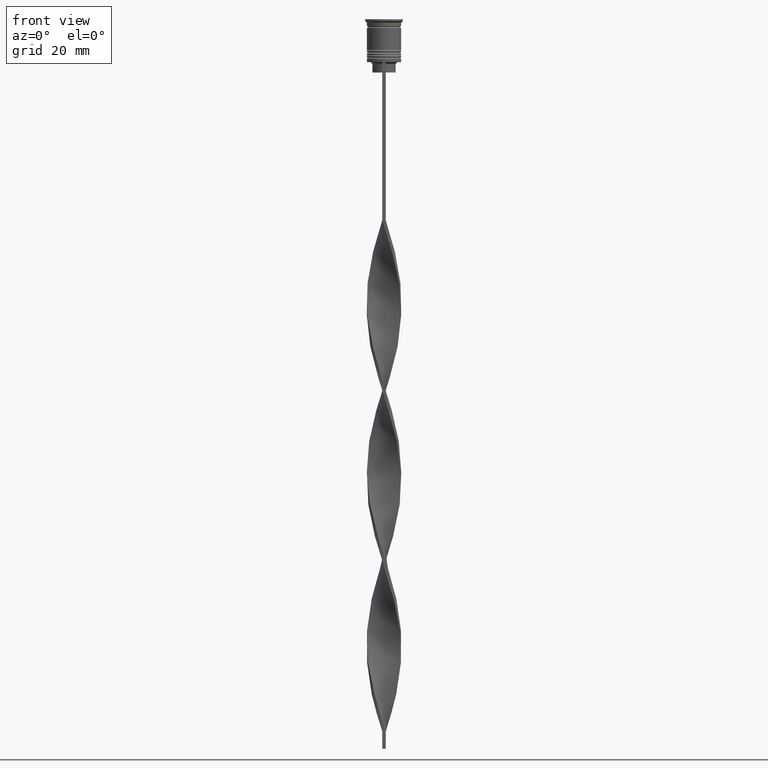
[diagram: clean part render]
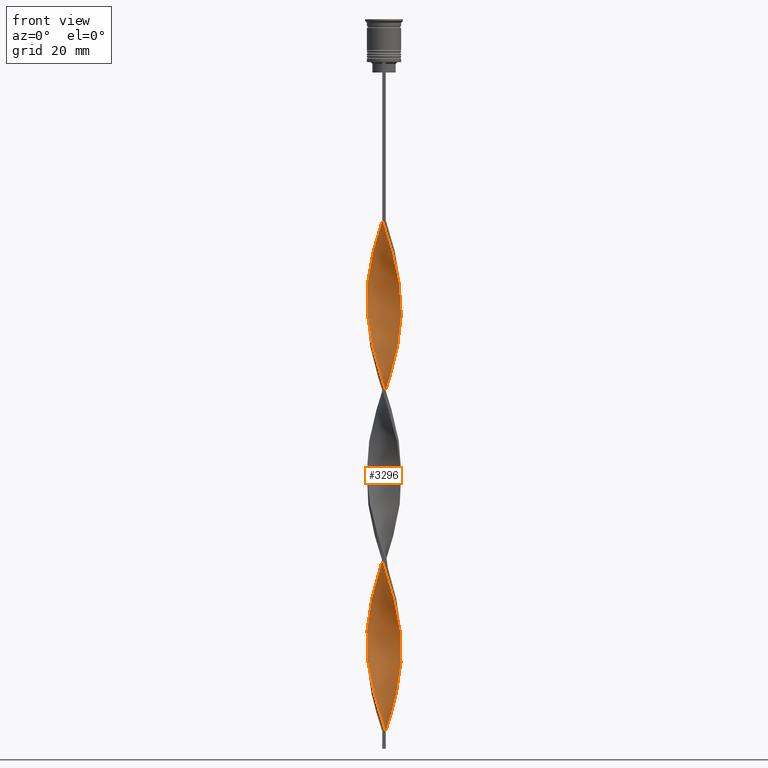
[diagram: same view with one face highlighted and labeled with its STEP entity id]
A machine part, front view. The second image highlights one B-rep face of the part: STEP entity #3296.
In plain terms, the highlighted face is a freeform B-spline surface patch.
Its self-contained STEP definition (entity closure, byte-faithful):
#1 = CARTESIAN_POINT ( 'NONE',  ( 4.843652908908672394, 1.416275721470218629, -135.9215686274509665 ) ) ;
#8 = CARTESIAN_POINT ( 'NONE',  ( -2.687738844636429203, 4.271167325712945662, -65.80392156862747299 ) ) ;
#18 = CARTESIAN_POINT ( 'NONE',  ( 5.024805061206825130, 0.03652529083100763962, -131.5392156862745310 ) ) ;
#22 = VERTEX_POINT ( 'NONE', #1020 ) ;
#28 = CARTESIAN_POINT ( 'NONE',  ( 5.021420494578372917, 0.5021420494578362481, -133.0000000000000000 ) ) ;
#39 = CARTESIAN_POINT ( 'NONE',  ( -4.291403454590826172, 2.614164568256163168, -172.4411764705882035 ) ) ;
#48 = CARTESIAN_POINT ( 'NONE',  ( -1.857150046639456598, 4.692313302143463538, -162.2156862745098351 ) ) ;
#53 = CARTESIAN_POINT ( 'NONE',  ( 0.8912038472716523607, -4.967148691534572613, -62.88235294117647811 ) ) ;
#62 = CARTESIAN_POINT ( 'NONE',  ( 4.291403454590826172, -2.614164568256163612, -122.7745098039215605 ) ) ;
#69 = CARTESIAN_POINT ( 'NONE',  ( -5.021420494578372917, -0.5021420494578369143, -182.6666666666666572 ) ) ;
#73 = CARTESIAN_POINT ( 'NONE',  ( 1.788740585195520927, -4.718815268696137544, -65.80392156862747299 ) ) ;
#91 = CARTESIAN_POINT ( 'NONE',  ( 5.024805061206823353, -0.03652529083100791024, -84.79411764705882604 ) ) ;
#92 = EDGE_CURVE ( 'NONE', #936, #22, #773, .T. ) ;
#106 = CARTESIAN_POINT ( 'NONE',  ( -1.410234138924802982, 4.822990739511224589, -160.7549019607842808 ) ) ;
#113 = CARTESIAN_POINT ( 'NONE',  ( 4.291403454590825284, 2.614164568256161392, -93.55882352941176805 ) ) ;
#130 = CARTESIAN_POINT ( 'NONE',  ( 0.4999999999999993339, -5.000000000000000888, -207.5000000000000000 ) ) ;
#134 = CARTESIAN_POINT ( 'NONE',  ( 2.272444445637942234, 4.481740313928202823, -102.3235294117646959 ) ) ;
#153 = CARTESIAN_POINT ( 'NONE',  ( -4.049165433819486459, -3.011821659854192923, -144.6862745098039227 ) ) ;
#173 = CARTESIAN_POINT ( 'NONE',  ( -3.057269382251587064, -3.987869597209391159, -149.0686274509803866 ) ) ;
#185 = CARTESIAN_POINT ( 'NONE',  ( 4.672296720828052585, -1.849227771946823307, -78.95098039215686470 ) ) ;
#197 = CARTESIAN_POINT ( 'NONE',  ( 2.272444445637942234, 4.481740313928202823, -201.6568627450980387 ) ) ;
#205 = CARTESIAN_POINT ( 'NONE',  ( 0.5000000000000006661, 4.999999999999999112, -108.1666666666666572 ) ) ;
#215 = CARTESIAN_POINT ( 'NONE',  ( 0.5000000000000006661, 4.999999999999999112, -207.5000000000000000 ) ) ;
#225 = CARTESIAN_POINT ( 'NONE',  ( -3.057269382251586176, 3.987869597209393824, -67.26470588235292780 ) ) ;
#232 = CARTESIAN_POINT ( 'NONE',  ( -2.272444445637942678, -4.481740313928202823, -151.9901960784313530 ) ) ;
#240 = CARTESIAN_POINT ( 'NONE',  ( 4.932536701743520879, -0.9592088854640271611, -181.2058823529411598 ) ) ;
#246 = CARTESIAN_POINT ( 'NONE',  ( -1.410234138924802982, 4.822990739511224589, -61.42156862745097357 ) ) ;
#256 = CARTESIAN_POINT ( 'NONE',  ( 4.843652908908672394, 1.416275721470218629, -135.9215686274509665 ) ) ;
#263 = CARTESIAN_POINT ( 'NONE',  ( -4.533641475362163220, -2.216507476658133413, -141.7647058823529562 ) ) ;
#277 = CARTESIAN_POINT ( 'NONE',  ( 3.057269382251586620, -3.987869597209393824, -116.9313725490195992 ) ) ;
#287 = CARTESIAN_POINT ( 'NONE',  ( -4.945959710900137196, 0.8874021287740044839, -178.2843137254901933 ) ) ;
#298 = CARTESIAN_POINT ( 'NONE',  ( 1.410234138924801650, -4.822990739511224589, -111.0882352941176379 ) ) ;
#303 = CARTESIAN_POINT ( 'NONE',  ( 5.028189627835276454, 0.4290914677958227452, -185.5882352941176237 ) ) ;
#309 = CARTESIAN_POINT ( 'NONE',  ( 3.737982676843116359, -3.358196764280017454, -119.8529411764705799 ) ) ;
#318 = CARTESIAN_POINT ( 'NONE',  ( -1.339972216233586977, -4.842981980115355967, -102.3235294117646959 ) ) ;
#330 = CARTESIAN_POINT ( 'NONE',  ( -4.500940532747438105, -2.282179822423430871, -188.5098039215686185 ) ) ;
#338 = CARTESIAN_POINT ( 'NONE',  ( -4.049165433819489124, 3.011821659854192479, -71.64705882352943433 ) ) ;
#347 = CARTESIAN_POINT ( 'NONE',  ( 0.4999999999999993339, -5.000000000000000888, -108.1666666666666572 ) ) ;
#355 = CARTESIAN_POINT ( 'NONE',  ( -3.426799919866744037, 3.704571868705844206, -168.0588235294117680 ) ) ;
#367 = CARTESIAN_POINT ( 'NONE',  ( 4.672296720828054362, 1.849227771946823751, -137.3823529411764639 ) ) ;
#382 = CARTESIAN_POINT ( 'NONE',  ( 4.843652908908670618, -1.416275721470217519, -80.41176470588234793 ) ) ;
#403 = CARTESIAN_POINT ( 'NONE',  ( 3.688768818211569211, -3.412181795536401108, -73.10784313725488914 ) ) ;
#407 = CARTESIAN_POINT ( 'NONE',  ( -2.625363907848424105, -4.309788251477359999, -197.2745098039215463 ) ) ;
#411 = CARTESIAN_POINT ( 'NONE',  ( 0.8912038472716545812, 4.967148691534573501, -153.4509803921568789 ) ) ;
#417 = CARTESIAN_POINT ( 'NONE',  ( 4.500940532747437217, -2.282179822423430426, -77.49019607843138147 ) ) ;
#427 = CARTESIAN_POINT ( 'NONE',  ( -5.021420494578372029, 0.5021420494578382465, -133.0000000000000000 ) ) ;
#430 = CARTESIAN_POINT ( 'NONE',  ( -2.625363907848424105, -4.309788251477359999, -197.2745098039215463 ) ) ;
#449 = CARTESIAN_POINT ( 'NONE',  ( 4.843652908908670618, -1.416275721470217297, -80.41176470588234793 ) ) ;
#457 = CARTESIAN_POINT ( 'NONE',  ( 4.533641475362163220, 2.216507476658134301, -191.4313725490196134 ) ) ;
#465 = CARTESIAN_POINT ( 'NONE',  ( -0.03668176878985122263, -5.046331823121014359, -59.96078431372549034 ) ) ;
#474 = CARTESIAN_POINT ( 'NONE',  ( 1.339972216233586311, -4.842981980115355078, -163.6764705882352757 ) ) ;
#481 = EDGE_CURVE ( 'NONE', #22, #1591, #570, .T. ) ;
#484 = CARTESIAN_POINT ( 'NONE',  ( -4.252947278887043048, 2.676273424560220882, -125.6960784313725412 ) ) ;
#486 = CARTESIAN_POINT ( 'NONE',  ( -4.672296720828054362, -1.849227771946824417, -87.71568627450979250 ) ) ;
#493 = CARTESIAN_POINT ( 'NONE',  ( 3.057269382251585288, 3.987869597209392936, -198.7352941176470722 ) ) ;
#507 = CARTESIAN_POINT ( 'NONE',  ( 0.4272610392409006419, -5.006740257327792598, -61.42156862745097357 ) ) ;
#512 = CARTESIAN_POINT ( 'NONE',  ( -3.737982676843116359, 3.358196764280017454, -70.18627450980390847 ) ) ;
#520 = CARTESIAN_POINT ( 'NONE',  ( 4.672296720828052585, -1.849227771946823307, -178.2843137254901933 ) ) ;
#530 = CARTESIAN_POINT ( 'NONE',  ( -5.024805061206824242, -0.03652529083100704288, -81.87254901960783116 ) ) ;
#537 = CARTESIAN_POINT ( 'NONE',  ( 0.8912038472716523607, -4.967148691534572613, -162.2156862745098351 ) ) ;
#542 = CARTESIAN_POINT ( 'NONE',  ( -4.291403454590826172, -2.614164568256160948, -143.2254901960784537 ) ) ;
#554 = CARTESIAN_POINT ( 'NONE',  ( -4.863729793965000603, 1.345712789752187666, -77.49019607843138147 ) ) ;
#564 = CARTESIAN_POINT ( 'NONE',  ( -0.9633182312101489231, -4.953668176878984752, -156.3725490196078454 ) ) ;
#570 = B_SPLINE_CURVE_WITH_KNOTS ( 'NONE', 3,
 ( #1874, #3306, #3330, #1567 ),
 .UNSPECIFIED., .F., .F.,
 ( 4, 4 ),
 ( 0.000000000000000000, 1.000000000000000000 ),
 .UNSPECIFIED. ) ;
#571 = CARTESIAN_POINT ( 'NONE',  ( -4.252947278887043936, -2.676273424560222658, -90.63725490196078738 ) ) ;
#580 = CARTESIAN_POINT ( 'NONE',  ( 4.252947278887043048, 2.676273424560224434, -140.3039215686274588 ) ) ;
#587 = CARTESIAN_POINT ( 'NONE',  ( 1.339972216233586311, -4.842981980115355078, -163.6764705882352757 ) ) ;
#593 = CARTESIAN_POINT ( 'NONE',  ( -3.057269382251586176, 3.987869597209393824, -166.5980392156862706 ) ) ;
#600 = CARTESIAN_POINT ( 'NONE',  ( -4.698685634663581467, 1.781110133205160651, -76.02941176470586981 ) ) ;
#605 = CARTESIAN_POINT ( 'NONE',  ( 0.4272610392409006419, -5.006740257327792598, -160.7549019607842808 ) ) ;
#609 = CARTESIAN_POINT ( 'NONE',  ( -4.049165433819489124, 3.011821659854192035, -170.9803921568627629 ) ) ;
#619 = CARTESIAN_POINT ( 'NONE',  ( 4.672296720828054362, 1.849227771946823751, -137.3823529411764639 ) ) ;
#629 = CARTESIAN_POINT ( 'NONE',  ( 4.004954025026648878, 3.070367026697015778, -141.7647058823529562 ) ) ;
#637 = CARTESIAN_POINT ( 'NONE',  ( 5.024805061206825130, 0.03652529083100763962, -131.5392156862745310 ) ) ;
#647 = CARTESIAN_POINT ( 'NONE',  ( -2.687738844636429647, 4.271167325712944773, -165.1372549019608016 ) ) ;
#664 = CARTESIAN_POINT ( 'NONE',  ( 4.932536701743522656, 0.9592088854640251627, -134.4607843137254974 ) ) ;
#697 = CARTESIAN_POINT ( 'NONE',  ( 3.426799919866742705, 3.704571868705843318, -97.94117647058824616 ) ) ;
#705 = CARTESIAN_POINT ( 'NONE',  ( 0.03668176878985187489, -5.046331823121017024, -206.0392156862745026 ) ) ;
#717 = CARTESIAN_POINT ( 'NONE',  ( 3.057269382251585288, 3.987869597209392936, -99.40196078431372939 ) ) ;
#729 = CARTESIAN_POINT ( 'NONE',  ( -4.698685634663581467, 1.781110133205160651, -175.3627450980391984 ) ) ;
#744 = CARTESIAN_POINT ( 'NONE',  ( 2.687738844636429203, 4.271167325712942997, -100.8627450980392126 ) ) ;
#773 =( BOUNDED_CURVE ( )  B_SPLINE_CURVE ( 2, ( #1710, #465, #507, #2628, #782, #2911, #1389, #3228, #3510, #1729, #3545, #2292, #2929, #3843, #185, #449, #1376, #1359, #1095, #3265, #1415, #2041, #1433, #2326, #1132, #3811, #2890, #2025, #1753, #744, #2606, #802, #2968, #1987, #205, #2364, #3823, #1060, #2664, #3247, #1074, #824, #3880, #2946, #2308, #3527, #484, #2646, #3582, #3862, #2064, #427, #1674, #1829, #3301, #3938, #3896, #263, #542, #1495, #926, #883, #2164, #3642, #1149, #3322, #2125, #564, #840, #3986, #605, #3386, #587, #1516, #2744, #2699, #1189, #1808, #2998, #3960, #1210, #2450, #1849, #3067, #240, #1167, #2382, #303, #1541, #1869, #2099, #3088, #1451, #3599, #1473, #3916, #3025, #2401, #3621, #3730, #1293, #1907, #2484 ),
 .UNSPECIFIED., .F., .T. ) 
 B_SPLINE_CURVE_WITH_KNOTS ( ( 3, 2, 2, 2, 2, 2, 2, 2, 2, 2, 2, 2, 2, 2, 2, 2, 2, 2, 2, 2, 2, 2, 2, 2, 2, 2, 2, 2, 2, 2, 2, 2, 2, 2, 2, 2, 2, 2, 2, 2, 2, 2, 2, 2, 2, 2, 2, 2, 2, 2, 2, 3 ),
 ( 0.000000000000000000, 0.01470588235294117453, 0.02941176470588234906, 0.04411764705882353227, 0.05882352941176469813, 0.07352941176470588480, 0.08823529411764706454, 0.1029411764705882443, 0.1176470588235293963, 0.1323529411764705899, 0.1470588235294117696, 0.1617647058823529493, 0.1764705882352941291, 0.1911764705882352811, 0.2058823529411764885, 0.2205882352941176405, 0.2352941176470587925, 0.2500000000000000000, 0.2647058823529411797, 0.2794117647058823595, 0.2941176470588235392, 0.3088235294117647189, 0.3235294117647058987, 0.3382352941176470229, 0.3529411764705882582, 0.3676470588235294379, 0.3823529411764705621, 0.3970588235294117418, 0.4117647058823529771, 0.4264705882352941013, 0.4411764705882352811, 0.4558823529411764608, 0.4705882352941175850, 0.4852941176470588203, 0.5000000000000000000, 0.5147058823529411242, 0.5294117647058823595, 0.5441176470588234837, 0.5588235294117647189, 0.5735294117647058432, 0.5882352941176470784, 0.6029411764705882026, 0.6176470588235294379, 0.6323529411764705621, 0.6470588235294117974, 0.6617647058823529216, 0.6764705882352940458, 0.6911764705882351700, 0.7058823529411765163, 0.7205882352941176405, 0.7352941176470588758, 0.7500000000000000000 ),
 .UNSPECIFIED. ) 
 CURVE ( )  GEOMETRIC_REPRESENTATION_ITEM ( )  RATIONAL_B_SPLINE_CURVE ( ( 1.000000000000000000, 0.9957341762950344677, 1.000000000000000000, 0.9957341762950344677, 1.000000000000000000, 0.9957341762950344677, 1.000000000000000000, 0.9957341762950344677, 1.000000000000000000, 0.9957341762950344677, 1.000000000000000000, 0.9957341762950344677, 1.000000000000000000, 0.9957341762950344677, 1.000000000000000000, 0.9957341762950344677, 1.000000000000000000, 0.9957341762950344677, 1.000000000000000000, 0.9957341762950344677, 1.000000000000000000, 0.9957341762950344677, 1.000000000000000000, 0.9957341762950344677, 1.000000000000000000, 0.9957341762950344677, 1.000000000000000000, 0.9957341762950344677, 1.000000000000000000, 0.9957341762950344677, 1.000000000000000000, 0.9957341762950344677, 1.000000000000000000, 0.9957341762950344677, 1.000000000000000000, 0.9957341762950344677, 1.000000000000000000, 0.9957341762950344677, 1.000000000000000000, 0.9957341762950344677, 1.000000000000000000, 0.9957341762950344677, 1.000000000000000000, 0.9957341762950344677, 1.000000000000000000, 0.9957341762950344677, 1.000000000000000000, 0.9957341762950344677, 1.000000000000000000, 0.9957341762950344677, 1.000000000000000000, 0.9957341762950344677, 1.000000000000000000, 0.9957341762950344677, 1.000000000000000000, 0.9957341762950344677, 1.000000000000000000, 0.9957341762950344677, 1.000000000000000000, 0.9957341762950344677, 1.000000000000000000, 0.9957341762950344677, 1.000000000000000000, 0.9957341762950344677, 1.000000000000000000, 0.9957341762950344677, 1.000000000000000000, 0.9957341762950344677, 1.000000000000000000, 0.9957341762950344677, 1.000000000000000000, 0.9957341762950344677, 1.000000000000000000, 0.9957341762950344677, 1.000000000000000000, 0.9957341762950344677, 1.000000000000000000, 0.9957341762950344677, 1.000000000000000000, 0.9957341762950344677, 1.000000000000000000, 0.9957341762950344677, 1.000000000000000000, 0.9957341762950344677, 1.000000000000000000, 0.9957341762950344677, 1.000000000000000000, 0.9957341762950344677, 1.000000000000000000, 0.9957341762950344677, 1.000000000000000000, 0.9957341762950344677, 1.000000000000000000, 0.9957341762950344677, 1.000000000000000000, 0.9957341762950344677, 1.000000000000000000, 0.9957341762950344677, 1.000000000000000000, 0.9957341762950344677, 1.000000000000000000, 0.9957341762950344677, 1.000000000000000000 ) ) 
 REPRESENTATION_ITEM ( '' )  );
#774 = CARTESIAN_POINT ( 'NONE',  ( -4.291403454590826172, -2.614164568256160948, -143.2254901960784537 ) ) ;
#782 = CARTESIAN_POINT ( 'NONE',  ( 1.339972216233586311, -4.842981980115355078, -64.34313725490196134 ) ) ;
#784 = CARTESIAN_POINT ( 'NONE',  ( -4.004954025026648878, -3.070367026697016666, -92.09803921568628482 ) ) ;
#791 = CARTESIAN_POINT ( 'NONE',  ( -1.410234138924801206, -4.822990739511222813, -154.9117647058823479 ) ) ;
#802 = CARTESIAN_POINT ( 'NONE',  ( 1.857150046639457264, 4.692313302143462650, -103.7843137254901791 ) ) ;
#804 = CARTESIAN_POINT ( 'NONE',  ( -2.272444445637943122, 4.481740313928203712, -64.34313725490196134 ) ) ;
#813 = CARTESIAN_POINT ( 'NONE',  ( -0.03668176878985122263, -5.046331823121014359, -159.2941176470588118 ) ) ;
#824 = CARTESIAN_POINT ( 'NONE',  ( -2.625363907848421885, 4.309788251477359111, -118.3921568627451109 ) ) ;
#828 = CARTESIAN_POINT ( 'NONE',  ( -5.028189627835278230, 0.4290914677958227452, -80.41176470588234793 ) ) ;
#836 = CARTESIAN_POINT ( 'NONE',  ( 3.737982676843115915, 3.358196764280015678, -195.8137254901960773 ) ) ;
#840 = CARTESIAN_POINT ( 'NONE',  ( -0.5000000000000000000, -4.999999999999999112, -157.8333333333333144 ) ) ;
#854 = CARTESIAN_POINT ( 'NONE',  ( 5.028189627835276454, 0.4290914677958227452, -185.5882352941176237 ) ) ;
#874 = CARTESIAN_POINT ( 'NONE',  ( -1.410234138924802982, 4.822990739511224589, -61.42156862745097357 ) ) ;
#883 = CARTESIAN_POINT ( 'NONE',  ( -3.426799919866744037, -3.704571868705841986, -147.6078431372548891 ) ) ;
#888 = CARTESIAN_POINT ( 'NONE',  ( 2.207052246521974403, 4.514301760086747883, -149.0686274509803866 ) ) ;
#899 = CARTESIAN_POINT ( 'NONE',  ( -1.857150046639456598, 4.692313302143463538, -62.88235294117647811 ) ) ;
#912 = CARTESIAN_POINT ( 'NONE',  ( 0.03668176878985187489, -5.046331823121017024, -106.7058823529411882 ) ) ;
#921 = CARTESIAN_POINT ( 'NONE',  ( -0.4272610392409010860, -5.006740257327794374, -105.2450980392156765 ) ) ;
#926 = CARTESIAN_POINT ( 'NONE',  ( -3.737982676843114582, -3.358196764280017010, -146.1470588235294201 ) ) ;
#931 = CARTESIAN_POINT ( 'NONE',  ( -4.863729793965000603, 1.345712789752187666, -176.8235294117647243 ) ) ;
#936 = VERTEX_POINT ( 'NONE', #3733 ) ;
#941 = CARTESIAN_POINT ( 'NONE',  ( 1.857150046639456598, -4.692313302143463538, -112.5490196078431495 ) ) ;
#952 = CARTESIAN_POINT ( 'NONE',  ( 4.698685634663582356, -1.781110133205159318, -125.6960784313725412 ) ) ;
#962 = CARTESIAN_POINT ( 'NONE',  ( 0.9633182312101494782, -4.953668176878985641, -109.6274509803921546 ) ) ;
#974 = CARTESIAN_POINT ( 'NONE',  ( 1.788740585195520927, 4.718815268696140208, -150.5294117647058840 ) ) ;
#981 = CARTESIAN_POINT ( 'NONE',  ( -2.207052246521971739, -4.514301760086749660, -198.7352941176470722 ) ) ;
#987 = CARTESIAN_POINT ( 'NONE',  ( 2.998973759622455937, -4.031892407926573441, -70.18627450980390847 ) ) ;
#1009 = CARTESIAN_POINT ( 'NONE',  ( 5.021420494578371141, -0.5021420494578375804, -83.33333333333332860 ) ) ;
#1020 = CARTESIAN_POINT ( 'NONE',  ( 0.5000000000000006661, 4.999999999999999112, -207.5000000000000000 ) ) ;
#1023 = CARTESIAN_POINT ( 'NONE',  ( -3.057269382251586176, 3.987869597209393824, -166.5980392156862706 ) ) ;
#1028 = CARTESIAN_POINT ( 'NONE',  ( 0.9633182312101483680, 4.953668176878984752, -106.7058823529412024 ) ) ;
#1045 = CARTESIAN_POINT ( 'NONE',  ( -5.024805061206824242, -0.03652529083100704288, -181.2058823529411598 ) ) ;
#1052 = CARTESIAN_POINT ( 'NONE',  ( 1.857150046639457264, 4.692313302143462650, -103.7843137254901933 ) ) ;
#1055 = CARTESIAN_POINT ( 'NONE',  ( 0.4999999999999993339, -5.000000000000000888, -207.5000000000000000 ) ) ;
#1060 = CARTESIAN_POINT ( 'NONE',  ( -0.8912038472716523607, 4.967148691534572613, -112.5490196078431495 ) ) ;
#1074 = CARTESIAN_POINT ( 'NONE',  ( -2.207052246521971295, 4.514301760086747883, -116.9313725490195992 ) ) ;
#1084 = CARTESIAN_POINT ( 'NONE',  ( -5.021420494578371141, 0.5021420494578382465, -133.0000000000000000 ) ) ;
#1095 = CARTESIAN_POINT ( 'NONE',  ( 5.024805061206823353, -0.03652529083100791024, -84.79411764705882604 ) ) ;
#1105 = CARTESIAN_POINT ( 'NONE',  ( -4.698685634663579691, -1.781110133205161095, -140.3039215686274588 ) ) ;
#1123 = CARTESIAN_POINT ( 'NONE',  ( -4.500940532747437217, 2.282179822423429982, -127.1568627450980102 ) ) ;
#1132 = CARTESIAN_POINT ( 'NONE',  ( 4.291403454590825284, 2.614164568256161392, -93.55882352941176805 ) ) ;
#1134 = CARTESIAN_POINT ( 'NONE',  ( -3.372583611396491321, -3.753996564375790435, -95.01960784313726549 ) ) ;
#1142 = CARTESIAN_POINT ( 'NONE',  ( -3.688768818211568323, 3.412181795536401552, -122.7745098039215605 ) ) ;
#1149 = CARTESIAN_POINT ( 'NONE',  ( -2.272444445637942678, -4.481740313928202823, -151.9901960784313530 ) ) ;
#1163 = CARTESIAN_POINT ( 'NONE',  ( 2.207052246521970851, -4.514301760086748772, -166.5980392156862706 ) ) ;
#1167 = CARTESIAN_POINT ( 'NONE',  ( 5.021420494578372029, -0.5021420494578375804, -182.6666666666666856 ) ) ;
#1173 = CARTESIAN_POINT ( 'NONE',  ( -4.291403454590826172, 2.614164568256163168, -73.10784313725488914 ) ) ;
#1182 = CARTESIAN_POINT ( 'NONE',  ( -5.028189627835278230, 0.4290914677958227452, -80.41176470588234793 ) ) ;
#1189 = CARTESIAN_POINT ( 'NONE',  ( 2.998973759622455937, -4.031892407926573441, -169.5196078431372371 ) ) ;
#1194 = CARTESIAN_POINT ( 'NONE',  ( -4.533641475362164996, 2.216507476658134301, -74.56862745098038658 ) ) ;
#1201 = CARTESIAN_POINT ( 'NONE',  ( 4.533641475362164108, -2.216507476658135634, -124.2352941176470580 ) ) ;
#1203 = EDGE_CURVE ( 'NONE', #936, #3523, #2108, .T. ) ;
#1210 = CARTESIAN_POINT ( 'NONE',  ( 4.252947278887042160, -2.676273424560222214, -175.3627450980391984 ) ) ;
#1216 = CARTESIAN_POINT ( 'NONE',  ( 1.410234138924801650, -4.822990739511224589, -111.0882352941176379 ) ) ;
#1227 = CARTESIAN_POINT ( 'NONE',  ( 3.688768818211571876, 3.412181795536401108, -143.2254901960784537 ) ) ;
#1237 = CARTESIAN_POINT ( 'NONE',  ( 5.028189627835277342, -0.4290914677958209134, -130.0784313725490335 ) ) ;
#1245 = CARTESIAN_POINT ( 'NONE',  ( -4.932536701743522656, -0.9592088854640269391, -84.79411764705882604 ) ) ;
#1255 = CARTESIAN_POINT ( 'NONE',  ( -0.03668176878985122263, 5.046331823121017024, -156.3725490196078454 ) ) ;
#1257 = DIRECTION ( 'NONE',  ( 0.000000000000000000, 1.000000000000000000, 0.000000000000000000 ) ) ;
#1263 = CARTESIAN_POINT ( 'NONE',  ( -3.737982676843116359, 3.358196764280017454, -70.18627450980390847 ) ) ;
#1274 = CARTESIAN_POINT ( 'NONE',  ( 5.021420494578373805, 0.5021420494578362481, -133.0000000000000000 ) ) ;
#1287 = CARTESIAN_POINT ( 'NONE',  ( -4.843652908908672394, -1.416275721470217963, -185.5882352941176237 ) ) ;
#1293 = CARTESIAN_POINT ( 'NONE',  ( 1.410234138924802538, 4.822990739511222813, -204.5784313725490335 ) ) ;
#1297 = CARTESIAN_POINT ( 'NONE',  ( 0.8912038472716545812, 4.967148691534573501, -153.4509803921568789 ) ) ;
#1326 = CARTESIAN_POINT ( 'NONE',  ( 5.028189627835276454, 0.4290914677958227452, -86.25490196078432348 ) ) ;
#1347 = CARTESIAN_POINT ( 'NONE',  ( 0.03668176878985084099, 5.046331823121014359, -109.6274509803921546 ) ) ;
#1359 = CARTESIAN_POINT ( 'NONE',  ( 5.021420494578372029, -0.5021420494578375804, -83.33333333333332860 ) ) ;
#1362 = CARTESIAN_POINT ( 'NONE',  ( -0.9633182312101491451, 4.953668176878985641, -159.2941176470588118 ) ) ;
#1365 = CARTESIAN_POINT ( 'NONE',  ( -1.339972216233587421, 4.842981980115354190, -114.0098039215686185 ) ) ;
#1376 = CARTESIAN_POINT ( 'NONE',  ( 4.932536701743520879, -0.9592088854640271611, -81.87254901960783116 ) ) ;
#1383 = CARTESIAN_POINT ( 'NONE',  ( -4.004954025026647102, 3.070367026697016222, -124.2352941176470580 ) ) ;
#1389 = CARTESIAN_POINT ( 'NONE',  ( 2.207052246521970851, -4.514301760086748772, -67.26470588235292780 ) ) ;
#1403 = CARTESIAN_POINT ( 'NONE',  ( 4.945959710900135420, 0.8874021287740047059, -187.0490196078431211 ) ) ;
#1415 = CARTESIAN_POINT ( 'NONE',  ( 4.945959710900135420, 0.8874021287740047059, -87.71568627450979250 ) ) ;
#1426 = CARTESIAN_POINT ( 'NONE',  ( 4.698685634663579691, 1.781110133205159318, -189.9705882352941160 ) ) ;
#1433 = CARTESIAN_POINT ( 'NONE',  ( 4.698685634663579691, 1.781110133205159318, -90.63725490196078738 ) ) ;
#1442 = CARTESIAN_POINT ( 'NONE',  ( -0.5000000000000000000, 5.000000000000000888, -58.50000000000000000 ) ) ;
#1451 = CARTESIAN_POINT ( 'NONE',  ( 4.291403454590825284, 2.614164568256161392, -192.8921568627450824 ) ) ;
#1456 = CARTESIAN_POINT ( 'NONE',  ( -1.788740585195522481, -4.718815268696138432, -100.8627450980392126 ) ) ;
#1464 = CARTESIAN_POINT ( 'NONE',  ( 3.372583611396490877, -3.753996564375789102, -170.9803921568627629 ) ) ;
#1473 = CARTESIAN_POINT ( 'NONE',  ( 3.737982676843115915, 3.358196764280015678, -195.8137254901960773 ) ) ;
#1489 = CARTESIAN_POINT ( 'NONE',  ( -3.426799919866744037, 3.704571868705844206, -68.72549019607842524 ) ) ;
#1495 = CARTESIAN_POINT ( 'NONE',  ( -4.049165433819486459, -3.011821659854192479, -144.6862745098039227 ) ) ;
#1510 = CARTESIAN_POINT ( 'NONE',  ( -1.788740585195522481, -4.718815268696138432, -100.8627450980392126 ) ) ;
#1516 = CARTESIAN_POINT ( 'NONE',  ( 1.788740585195520927, -4.718815268696137544, -165.1372549019608016 ) ) ;
#1522 = CARTESIAN_POINT ( 'NONE',  ( -3.688768818211570988, -3.412181795536401552, -192.8921568627450824 ) ) ;
#1532 = CARTESIAN_POINT ( 'NONE',  ( 4.863729793965000603, -1.345712789752187444, -127.1568627450980102 ) ) ;
#1541 = CARTESIAN_POINT ( 'NONE',  ( 4.945959710900135420, 0.8874021287740047059, -187.0490196078431211 ) ) ;
#1546 = CARTESIAN_POINT ( 'NONE',  ( -0.9633182312101491451, 4.953668176878985641, -159.2941176470588118 ) ) ;
#1558 = CARTESIAN_POINT ( 'NONE',  ( 3.737982676843116359, -3.358196764280017454, -119.8529411764705799 ) ) ;
#1566 = CARTESIAN_POINT ( 'NONE',  ( -4.004954025026648878, -3.070367026697016666, -191.4313725490196134 ) ) ;
#1567 = CARTESIAN_POINT ( 'NONE',  ( 0.4999999999999993339, -5.000000000000000888, -207.5000000000000000 ) ) ;
#1575 = CARTESIAN_POINT ( 'NONE',  ( -5.021420494578372917, -0.5021420494578369143, -83.33333333333332860 ) ) ;
#1587 = CARTESIAN_POINT ( 'NONE',  ( 0.9633182312101494782, -4.953668176878985641, -109.6274509803921404 ) ) ;
#1591 = VERTEX_POINT ( 'NONE', #1055 ) ;
#1594 = CARTESIAN_POINT ( 'NONE',  ( 0.4272610392408995317, 5.006740257327794374, -154.9117647058823479 ) ) ;
#1598 = CARTESIAN_POINT ( 'NONE',  ( -0.5000000000000000000, -4.999999999999999112, -58.50000000000000000 ) ) ;
#1606 = CARTESIAN_POINT ( 'NONE',  ( 2.272444445637944010, -4.481740313928203712, -114.0098039215686185 ) ) ;
#1617 = CARTESIAN_POINT ( 'NONE',  ( -0.03668176878985122263, 5.046331823121017024, -156.3725490196078454 ) ) ;
#1623 = CARTESIAN_POINT ( 'NONE',  ( -0.03668176878985122263, -5.046331823121014359, -59.96078431372549744 ) ) ;
#1646 = CARTESIAN_POINT ( 'NONE',  ( -1.788740585195522481, -4.718815268696138432, -200.1960784313725696 ) ) ;
#1654 = CARTESIAN_POINT ( 'NONE',  ( -1.339972216233586977, -4.842981980115355967, -201.6568627450980387 ) ) ;
#1660 = CARTESIAN_POINT ( 'NONE',  ( 4.698685634663579691, 1.781110133205159318, -90.63725490196078738 ) ) ;
#1674 = CARTESIAN_POINT ( 'NONE',  ( -5.024805061206823353, 0.03652529083100964497, -134.4607843137254974 ) ) ;
#1675 = ORIENTED_EDGE ( 'NONE', *, *, #481, .F. ) ;
#1678 = CARTESIAN_POINT ( 'NONE',  ( -4.945959710900137196, 0.8874021287740044839, -178.2843137254901933 ) ) ;
#1700 = CARTESIAN_POINT ( 'NONE',  ( 3.426799919866742705, 3.704571868705843318, -197.2745098039215463 ) ) ;
#1710 = CARTESIAN_POINT ( 'NONE',  ( -0.5000000000000000000, -4.999999999999999112, -58.50000000000000000 ) ) ;
#1717 = CARTESIAN_POINT ( 'NONE',  ( 2.998973759622455937, -4.031892407926573441, -169.5196078431372371 ) ) ;
#1729 = CARTESIAN_POINT ( 'NONE',  ( 3.372583611396490433, -3.753996564375789102, -71.64705882352942012 ) ) ;
#1732 = CARTESIAN_POINT ( 'NONE',  ( -0.5000000000000000000, 5.000000000000000888, -58.50000000000000000 ) ) ;
#1742 = CARTESIAN_POINT ( 'NONE',  ( 2.687738844636428759, 4.271167325712943885, -200.1960784313725981 ) ) ;
#1753 = CARTESIAN_POINT ( 'NONE',  ( 3.057269382251585288, 3.987869597209392936, -99.40196078431372939 ) ) ;
#1754 = CARTESIAN_POINT ( 'NONE',  ( -4.945959710900137196, 0.8874021287740044839, -78.95098039215686470 ) ) ;
#1761 = CARTESIAN_POINT ( 'NONE',  ( 4.843652908908670618, -1.416275721470217519, -179.7450980392157192 ) ) ;
#1779 = CARTESIAN_POINT ( 'NONE',  ( -3.426799919866743593, -3.704571868705841986, -147.6078431372548891 ) ) ;
#1798 = CARTESIAN_POINT ( 'NONE',  ( 5.028189627835277342, -0.4290914677958209134, -130.0784313725490335 ) ) ;
#1808 = CARTESIAN_POINT ( 'NONE',  ( 3.372583611396490433, -3.753996564375789102, -170.9803921568627629 ) ) ;
#1823 = CARTESIAN_POINT ( 'NONE',  ( 3.372583611396490433, 3.753996564375791323, -144.6862745098039227 ) ) ;
#1829 = CARTESIAN_POINT ( 'NONE',  ( -5.028189627835276454, -0.4290914677958234114, -135.9215686274509665 ) ) ;
#1836 = CARTESIAN_POINT ( 'NONE',  ( -4.672296720828054362, -1.849227771946824417, -187.0490196078431211 ) ) ;
#1844 = CARTESIAN_POINT ( 'NONE',  ( -3.372583611396491321, -3.753996564375790879, -95.01960784313725128 ) ) ;
#1849 = CARTESIAN_POINT ( 'NONE',  ( 4.672296720828052585, -1.849227771946823307, -178.2843137254901933 ) ) ;
#1853 = CARTESIAN_POINT ( 'NONE',  ( 3.426799919866743149, -3.704571868705845095, -118.3921568627451109 ) ) ;
#1860 = CARTESIAN_POINT ( 'NONE',  ( 4.945959710900137196, -0.8874021287740062602, -128.6176470588235361 ) ) ;
#1869 = CARTESIAN_POINT ( 'NONE',  ( 4.863729793964998827, 1.345712789752186556, -188.5098039215686185 ) ) ;
#1873 = CARTESIAN_POINT ( 'NONE',  ( -4.252947278887043936, -2.676273424560222658, -189.9705882352941160 ) ) ;
#1874 = CARTESIAN_POINT ( 'NONE',  ( 0.5000000000000006661, 4.999999999999999112, -207.5000000000000000 ) ) ;
#1880 = CARTESIAN_POINT ( 'NONE',  ( 4.500940532747439882, 2.282179822423429094, -138.8431372549019045 ) ) ;
#1889 = CARTESIAN_POINT ( 'NONE',  ( 2.625363907848424549, 4.309788251477359999, -147.6078431372548891 ) ) ;
#1897 = CARTESIAN_POINT ( 'NONE',  ( -3.737982676843116359, 3.358196764280017454, -169.5196078431372371 ) ) ;
#1907 = CARTESIAN_POINT ( 'NONE',  ( 0.9633182312101482569, 4.953668176878984752, -206.0392156862745026 ) ) ;
#1910 = CARTESIAN_POINT ( 'NONE',  ( 1.339972216233587421, 4.842981980115355967, -151.9901960784313530 ) ) ;
#1915 = CARTESIAN_POINT ( 'NONE',  ( -4.533641475362164996, 2.216507476658134301, -173.9019607843137294 ) ) ;
#1919 = CARTESIAN_POINT ( 'NONE',  ( 1.339972216233586311, -4.842981980115355078, -64.34313725490196134 ) ) ;
#1929 = CARTESIAN_POINT ( 'NONE',  ( -1.339972216233586977, -4.842981980115355967, -201.6568627450980387 ) ) ;
#1970 = CARTESIAN_POINT ( 'NONE',  ( -4.863729793965000603, 1.345712789752187666, -176.8235294117647243 ) ) ;
#1976 = CARTESIAN_POINT ( 'NONE',  ( 4.672296720828052585, -1.849227771946823307, -78.95098039215686470 ) ) ;
#1983 = CARTESIAN_POINT ( 'NONE',  ( -0.4272610392409010860, -5.006740257327794374, -204.5784313725490335 ) ) ;
#1987 = CARTESIAN_POINT ( 'NONE',  ( 0.9633182312101482569, 4.953668176878984752, -106.7058823529411882 ) ) ;
#2014 = CARTESIAN_POINT ( 'NONE',  ( 0.4272610392409006419, -5.006740257327792598, -160.7549019607842808 ) ) ;
#2018 =( BOUNDED_CURVE ( )  B_SPLINE_CURVE ( 2, ( #1732, #2727, #246, #2705, #804, #2105, #225, #2081, #512, #3922, #1173, #1194, #2345, #3903, #1754, #828, #530, #2407, #2969, #3881, #486, #3329, #571, #784, #3249, #1134, #2366, #2067, #3288, #1456, #2684, #2512, #2750, #912, #347, #1587, #1216, #2809, #1606, #3967, #3093, #1853, #309, #3709, #62, #3132, #952, #3354, #2457, #1237, #18, #1274, #664, #1, #367, #3050, #2132, #629, #3735, #3675, #2151, #1889, #888, #974, #1910, #1297, #2189, #1255, #3072, #1546, #3411, #3649, #2830, #647, #593, #3371, #2474, #609, #39, #2776, #3692, #931, #287, #2209, #3430, #2167, #3110, #3391, #1836, #330, #1873, #1566, #1522, #2793, #2488, #407, #3491, #1646, #1929, #3820, #1983, #705, #3505 ),
 .UNSPECIFIED., .F., .T. ) 
 B_SPLINE_CURVE_WITH_KNOTS ( ( 3, 2, 2, 2, 2, 2, 2, 2, 2, 2, 2, 2, 2, 2, 2, 2, 2, 2, 2, 2, 2, 2, 2, 2, 2, 2, 2, 2, 2, 2, 2, 2, 2, 2, 2, 2, 2, 2, 2, 2, 2, 2, 2, 2, 2, 2, 2, 2, 2, 2, 2, 3 ),
 ( 0.000000000000000000, 0.01470588235294117453, 0.02941176470588234906, 0.04411764705882353227, 0.05882352941176469813, 0.07352941176470588480, 0.08823529411764706454, 0.1029411764705882443, 0.1176470588235293963, 0.1323529411764705899, 0.1470588235294117696, 0.1617647058823529493, 0.1764705882352941291, 0.1911764705882352811, 0.2058823529411764885, 0.2205882352941176405, 0.2352941176470587925, 0.2500000000000000000, 0.2647058823529411797, 0.2794117647058823595, 0.2941176470588235392, 0.3088235294117647189, 0.3235294117647058987, 0.3382352941176470229, 0.3529411764705882582, 0.3676470588235294379, 0.3823529411764705621, 0.3970588235294117418, 0.4117647058823529771, 0.4264705882352941013, 0.4411764705882352811, 0.4558823529411764608, 0.4705882352941175850, 0.4852941176470588203, 0.5000000000000000000, 0.5147058823529411242, 0.5294117647058823595, 0.5441176470588234837, 0.5588235294117647189, 0.5735294117647058432, 0.5882352941176470784, 0.6029411764705882026, 0.6176470588235294379, 0.6323529411764705621, 0.6470588235294117974, 0.6617647058823529216, 0.6764705882352940458, 0.6911764705882351700, 0.7058823529411765163, 0.7205882352941176405, 0.7352941176470588758, 0.7500000000000000000 ),
 .UNSPECIFIED. ) 
 CURVE ( )  GEOMETRIC_REPRESENTATION_ITEM ( )  RATIONAL_B_SPLINE_CURVE ( ( 1.000000000000000000, 0.9957341762950344677, 1.000000000000000000, 0.9957341762950344677, 1.000000000000000000, 0.9957341762950344677, 1.000000000000000000, 0.9957341762950344677, 1.000000000000000000, 0.9957341762950344677, 1.000000000000000000, 0.9957341762950344677, 1.000000000000000000, 0.9957341762950344677, 1.000000000000000000, 0.9957341762950344677, 1.000000000000000000, 0.9957341762950344677, 1.000000000000000000, 0.9957341762950344677, 1.000000000000000000, 0.9957341762950344677, 1.000000000000000000, 0.9957341762950344677, 1.000000000000000000, 0.9957341762950344677, 1.000000000000000000, 0.9957341762950344677, 1.000000000000000000, 0.9957341762950344677, 1.000000000000000000, 0.9957341762950344677, 1.000000000000000000, 0.9957341762950344677, 1.000000000000000000, 0.9957341762950344677, 1.000000000000000000, 0.9957341762950344677, 1.000000000000000000, 0.9957341762950344677, 1.000000000000000000, 0.9957341762950344677, 1.000000000000000000, 0.9957341762950344677, 1.000000000000000000, 0.9957341762950344677, 1.000000000000000000, 0.9957341762950344677, 1.000000000000000000, 0.9957341762950344677, 1.000000000000000000, 0.9957341762950344677, 1.000000000000000000, 0.9957341762950344677, 1.000000000000000000, 0.9957341762950344677, 1.000000000000000000, 0.9957341762950344677, 1.000000000000000000, 0.9957341762950344677, 1.000000000000000000, 0.9957341762950344677, 1.000000000000000000, 0.9957341762950344677, 1.000000000000000000, 0.9957341762950344677, 1.000000000000000000, 0.9957341762950344677, 1.000000000000000000, 0.9957341762950344677, 1.000000000000000000, 0.9957341762950344677, 1.000000000000000000, 0.9957341762950344677, 1.000000000000000000, 0.9957341762950344677, 1.000000000000000000, 0.9957341762950344677, 1.000000000000000000, 0.9957341762950344677, 1.000000000000000000, 0.9957341762950344677, 1.000000000000000000, 0.9957341762950344677, 1.000000000000000000, 0.9957341762950344677, 1.000000000000000000, 0.9957341762950344677, 1.000000000000000000, 0.9957341762950344677, 1.000000000000000000, 0.9957341762950344677, 1.000000000000000000, 0.9957341762950344677, 1.000000000000000000, 0.9957341762950344677, 1.000000000000000000, 0.9957341762950344677, 1.000000000000000000, 0.9957341762950344677, 1.000000000000000000, 0.9957341762950344677, 1.000000000000000000 ) ) 
 REPRESENTATION_ITEM ( '' )  );
#2025 = CARTESIAN_POINT ( 'NONE',  ( 3.426799919866743149, 3.704571868705843318, -97.94117647058824616 ) ) ;
#2033 = CARTESIAN_POINT ( 'NONE',  ( 4.252947278887042160, -2.676273424560222214, -175.3627450980391984 ) ) ;
#2041 = CARTESIAN_POINT ( 'NONE',  ( 4.863729793964998827, 1.345712789752186556, -89.17647058823528994 ) ) ;
#2054 = CARTESIAN_POINT ( 'NONE',  ( 2.625363907848422773, -4.309788251477359111, -168.0588235294117680 ) ) ;
#2064 = CARTESIAN_POINT ( 'NONE',  ( -4.932536701743520879, 0.9592088854640268281, -131.5392156862745310 ) ) ;
#2067 = CARTESIAN_POINT ( 'NONE',  ( -2.625363907848424105, -4.309788251477359999, -97.94117647058824616 ) ) ;
#2074 = CARTESIAN_POINT ( 'NONE',  ( 4.932536701743520879, -0.9592088854640271611, -181.2058823529411598 ) ) ;
#2081 = CARTESIAN_POINT ( 'NONE',  ( -3.426799919866744482, 3.704571868705844206, -68.72549019607842524 ) ) ;
#2091 = CARTESIAN_POINT ( 'NONE',  ( 1.788740585195520927, -4.718815268696137544, -165.1372549019608016 ) ) ;
#2099 = CARTESIAN_POINT ( 'NONE',  ( 4.698685634663579691, 1.781110133205159318, -189.9705882352941160 ) ) ;
#2105 = CARTESIAN_POINT ( 'NONE',  ( -2.687738844636429647, 4.271167325712944773, -65.80392156862745878 ) ) ;
#2108 = LINE ( 'NONE', #3970, #3516 ) ;
#2116 = CARTESIAN_POINT ( 'NONE',  ( -2.272444445637943122, 4.481740313928203712, -64.34313725490196134 ) ) ;
#2125 = CARTESIAN_POINT ( 'NONE',  ( -1.410234138924801206, -4.822990739511222813, -154.9117647058823479 ) ) ;
#2132 = CARTESIAN_POINT ( 'NONE',  ( 4.252947278887043048, 2.676273424560224434, -140.3039215686274588 ) ) ;
#2140 = CARTESIAN_POINT ( 'NONE',  ( -4.945959710900137196, 0.8874021287740044839, -78.95098039215686470 ) ) ;
#2151 = CARTESIAN_POINT ( 'NONE',  ( 2.998973759622456825, 4.031892407926575217, -146.1470588235294201 ) ) ;
#2158 = CARTESIAN_POINT ( 'NONE',  ( 4.291403454590826172, -2.614164568256163612, -122.7745098039215605 ) ) ;
#2164 = CARTESIAN_POINT ( 'NONE',  ( -3.057269382251587064, -3.987869597209391159, -149.0686274509803866 ) ) ;
#2167 = CARTESIAN_POINT ( 'NONE',  ( -5.021420494578373805, -0.5021420494578369143, -182.6666666666666856 ) ) ;
#2176 = CARTESIAN_POINT ( 'NONE',  ( 2.687738844636429203, -4.271167325712945662, -115.4705882352940876 ) ) ;
#2189 = CARTESIAN_POINT ( 'NONE',  ( 0.4272610392408995317, 5.006740257327794374, -154.9117647058823479 ) ) ;
#2209 = CARTESIAN_POINT ( 'NONE',  ( -5.028189627835278230, 0.4290914677958227452, -179.7450980392157476 ) ) ;
#2223 = FACE_OUTER_BOUND ( 'NONE', #3884, .T. ) ;
#2241 = CARTESIAN_POINT ( 'NONE',  ( 4.533641475362163220, 2.216507476658134301, -92.09803921568628482 ) ) ;
#2259 = CARTESIAN_POINT ( 'NONE',  ( -0.8912038472716539150, -4.967148691534573501, -203.1176470588235361 ) ) ;
#2265 = CARTESIAN_POINT ( 'NONE',  ( 2.625363907848422773, -4.309788251477359111, -68.72549019607842524 ) ) ;
#2280 = CARTESIAN_POINT ( 'NONE',  ( -4.672296720828054362, -1.849227771946824417, -187.0490196078431211 ) ) ;
#2284 = CARTESIAN_POINT ( 'NONE',  ( -0.8912038472716523607, 4.967148691534572613, -112.5490196078431495 ) ) ;
#2292 = CARTESIAN_POINT ( 'NONE',  ( 4.004954025026647102, -3.070367026697014889, -74.56862745098038658 ) ) ;
#2308 = CARTESIAN_POINT ( 'NONE',  ( -3.688768818211568323, 3.412181795536401552, -122.7745098039215605 ) ) ;
#2317 = CARTESIAN_POINT ( 'NONE',  ( -4.945959710900135420, -0.8874021287740040398, -137.3823529411764639 ) ) ;
#2326 = CARTESIAN_POINT ( 'NONE',  ( 4.533641475362163220, 2.216507476658134301, -92.09803921568628482 ) ) ;
#2335 = CARTESIAN_POINT ( 'NONE',  ( -0.5000000000000000000, -4.999999999999999112, -157.8333333333333144 ) ) ;
#2345 = CARTESIAN_POINT ( 'NONE',  ( -4.698685634663581467, 1.781110133205160651, -76.02941176470586981 ) ) ;
#2353 = CARTESIAN_POINT ( 'NONE',  ( -2.625363907848421885, 4.309788251477359111, -118.3921568627451109 ) ) ;
#2364 = CARTESIAN_POINT ( 'NONE',  ( 0.03668176878985084099, 5.046331823121014359, -109.6274509803921404 ) ) ;
#2366 = CARTESIAN_POINT ( 'NONE',  ( -2.998973759622457713, -4.031892407926574329, -96.48039215686274872 ) ) ;
#2375 = CARTESIAN_POINT ( 'NONE',  ( -5.028189627835276454, -0.4290914677958234114, -135.9215686274509665 ) ) ;
#2382 = CARTESIAN_POINT ( 'NONE',  ( 5.024805061206823353, -0.03652529083100791024, -184.1274509803921546 ) ) ;
#2397 = CARTESIAN_POINT ( 'NONE',  ( 5.021420494578371141, -0.5021420494578375804, -182.6666666666666572 ) ) ;
#2401 = CARTESIAN_POINT ( 'NONE',  ( 2.687738844636429203, 4.271167325712942997, -200.1960784313725696 ) ) ;
#2407 = CARTESIAN_POINT ( 'NONE',  ( -5.021420494578373805, -0.5021420494578369143, -83.33333333333332860 ) ) ;
#2416 = CARTESIAN_POINT ( 'NONE',  ( -2.625363907848424105, -4.309788251477359999, -97.94117647058824616 ) ) ;
#2441 = CARTESIAN_POINT ( 'NONE',  ( 1.339972216233587421, 4.842981980115355967, -151.9901960784313530 ) ) ;
#2450 = CARTESIAN_POINT ( 'NONE',  ( 4.500940532747436329, -2.282179822423430426, -176.8235294117647243 ) ) ;
#2457 = CARTESIAN_POINT ( 'NONE',  ( 4.945959710900137196, -0.8874021287740062602, -128.6176470588235361 ) ) ;
#2464 = CARTESIAN_POINT ( 'NONE',  ( -3.057269382251586176, 3.987869597209393824, -67.26470588235292780 ) ) ;
#2474 = CARTESIAN_POINT ( 'NONE',  ( -3.737982676843116359, 3.358196764280017454, -169.5196078431372371 ) ) ;
#2479 = CARTESIAN_POINT ( 'NONE',  ( -2.998973759622457713, -4.031892407926574329, -96.48039215686274872 ) ) ;
#2484 = CARTESIAN_POINT ( 'NONE',  ( 0.5000000000000006661, 4.999999999999999112, -207.5000000000000000 ) ) ;
#2488 = CARTESIAN_POINT ( 'NONE',  ( -2.998973759622457713, -4.031892407926574329, -195.8137254901960773 ) ) ;
#2497 = CARTESIAN_POINT ( 'NONE',  ( -4.252947278887043936, -2.676273424560222658, -90.63725490196078738 ) ) ;
#2512 = CARTESIAN_POINT ( 'NONE',  ( -0.8912038472716539150, -4.967148691534573501, -103.7843137254901791 ) ) ;
#2522 = CARTESIAN_POINT ( 'NONE',  ( -4.500940532747438994, -2.282179822423430871, -188.5098039215686185 ) ) ;
#2535 = CARTESIAN_POINT ( 'NONE',  ( -5.028189627835278230, 0.4290914677958227452, -179.7450980392157192 ) ) ;
#2540 = CARTESIAN_POINT ( 'NONE',  ( 4.932536701743520879, -0.9592088854640271611, -81.87254901960783116 ) ) ;
#2549 = CARTESIAN_POINT ( 'NONE',  ( -4.932536701743522656, -0.9592088854640269391, -184.1274509803921546 ) ) ;
#2555 = CARTESIAN_POINT ( 'NONE',  ( 2.687738844636428759, 4.271167325712943885, -100.8627450980392126 ) ) ;
#2577 = CARTESIAN_POINT ( 'NONE',  ( -0.4272610392408995317, 5.006740257327792598, -111.0882352941176379 ) ) ;
#2580 =( BOUNDED_SURFACE ( )  B_SPLINE_SURFACE ( 1, 2, ( 
 ( #1598, #1623, #3445, #53, #1919, #73, #2858, #2265, #987, #3803, #403, #3144, #3178, #417, #1976, #382, #2540, #1009, #91, #1326, #2900, #3783, #1660, #2241, #113, #3199, #3466, #697, #717, #2555, #134, #1052, #2876, #1028, #3486, #1347, #2577, #2284, #1365, #3502, #3571, #2353, #3538, #2959, #1142, #1383, #3235, #1123, #2672, #3831, #3854, #1084, #3615, #2375, #2317, #2615, #1105, #3277, #774, #153, #3594, #1779, #173, #2992, #232, #3912, #791, #3295, #2335, #813, #2014, #537, #474, #2091, #1163, #2054, #1717, #1464, #2693, #2936, #2033, #3888, #520, #1761, #2074, #2397, #3256, #854, #1403, #2918, #1426, #457, #2639, #3554, #836, #1700, #493, #1742, #197, #2655, #3871, #2975, #215 ),
 ( #1442, #3016, #874, #899, #2116, #8, #2464, #1489, #1263, #338, #3683, #3932, #600, #554, #2140, #1182, #3361, #1575, #1245, #2715, #2800, #3660, #2497, #3977, #3635, #1844, #2479, #2416, #3339, #1510, #318, #3700, #921, #3061, #3721, #962, #298, #941, #3316, #2176, #277, #3079, #1558, #2761, #2158, #1201, #3399, #1532, #1860, #1798, #637, #28, #3380, #256, #619, #1880, #580, #2783, #1227, #1823, #3102, #3039, #2736, #3953, #2441, #411, #1594, #1617, #2816, #1362, #106, #48, #3118, #2840, #1023, #355, #1897, #2869, #3498, #1915, #729, #1970, #1678, #2535, #1045, #69, #2549, #1287, #2280, #2522, #3813, #2894, #3777, #3744, #3193, #430, #981, #3760, #1654, #2259, #3482, #3798, #130 ) ),
 .UNSPECIFIED., .F., .F., .F. ) 
 B_SPLINE_SURFACE_WITH_KNOTS ( ( 2, 2 ),
 ( 3, 2, 2, 2, 2, 2, 2, 2, 2, 2, 2, 2, 2, 2, 2, 2, 2, 2, 2, 2, 2, 2, 2, 2, 2, 2, 2, 2, 2, 2, 2, 2, 2, 2, 2, 2, 2, 2, 2, 2, 2, 2, 2, 2, 2, 2, 2, 2, 2, 2, 2, 3 ),
 ( 0.000000000000000000, 1.000000000000000000 ),
 ( 0.000000000000000000, 0.01470588235294117627, 0.02941176470588235253, 0.04411764705882353227, 0.05882352941176470507, 0.07352941176470588480, 0.08823529411764706454, 0.1029411764705882304, 0.1176470588235294101, 0.1323529411764705899, 0.1470588235294117696, 0.1617647058823529493, 0.1764705882352941291, 0.1911764705882352811, 0.2058823529411764608, 0.2205882352941176405, 0.2352941176470588203, 0.2500000000000000000, 0.2647058823529411797, 0.2794117647058823595, 0.2941176470588235392, 0.3088235294117647189, 0.3235294117647058987, 0.3382352941176470784, 0.3529411764705882582, 0.3676470588235294379, 0.3823529411764705621, 0.3970588235294117418, 0.4117647058823529216, 0.4264705882352941013, 0.4411764705882352811, 0.4558823529411764608, 0.4705882352941176405, 0.4852941176470588203, 0.5000000000000000000, 0.5147058823529411242, 0.5294117647058823595, 0.5441176470588234837, 0.5588235294117647189, 0.5735294117647058432, 0.5882352941176470784, 0.6029411764705882026, 0.6176470588235294379, 0.6323529411764705621, 0.6470588235294117974, 0.6617647058823529216, 0.6764705882352941568, 0.6911764705882352811, 0.7058823529411765163, 0.7205882352941176405, 0.7352941176470588758, 0.7500000000000000000 ),
 .UNSPECIFIED. ) 
 GEOMETRIC_REPRESENTATION_ITEM ( )  RATIONAL_B_SPLINE_SURFACE ( (
 ( 1.000000000000000000, 0.9957341762950344677, 1.000000000000000000, 0.9957341762950344677, 1.000000000000000000, 0.9957341762950344677, 1.000000000000000000, 0.9957341762950344677, 1.000000000000000000, 0.9957341762950344677, 1.000000000000000000, 0.9957341762950344677, 1.000000000000000000, 0.9957341762950344677, 1.000000000000000000, 0.9957341762950344677, 1.000000000000000000, 0.9957341762950344677, 1.000000000000000000, 0.9957341762950344677, 1.000000000000000000, 0.9957341762950344677, 1.000000000000000000, 0.9957341762950344677, 1.000000000000000000, 0.9957341762950344677, 1.000000000000000000, 0.9957341762950344677, 1.000000000000000000, 0.9957341762950344677, 1.000000000000000000, 0.9957341762950344677, 1.000000000000000000, 0.9957341762950344677, 1.000000000000000000, 0.9957341762950344677, 1.000000000000000000, 0.9957341762950344677, 1.000000000000000000, 0.9957341762950344677, 1.000000000000000000, 0.9957341762950344677, 1.000000000000000000, 0.9957341762950344677, 1.000000000000000000, 0.9957341762950344677, 1.000000000000000000, 0.9957341762950344677, 1.000000000000000000, 0.9957341762950344677, 1.000000000000000000, 0.9957341762950344677, 1.000000000000000000, 0.9957341762950344677, 1.000000000000000000, 0.9957341762950344677, 1.000000000000000000, 0.9957341762950344677, 1.000000000000000000, 0.9957341762950344677, 1.000000000000000000, 0.9957341762950344677, 1.000000000000000000, 0.9957341762950344677, 1.000000000000000000, 0.9957341762950344677, 1.000000000000000000, 0.9957341762950344677, 1.000000000000000000, 0.9957341762950344677, 1.000000000000000000, 0.9957341762950344677, 1.000000000000000000, 0.9957341762950344677, 1.000000000000000000, 0.9957341762950344677, 1.000000000000000000, 0.9957341762950344677, 1.000000000000000000, 0.9957341762950344677, 1.000000000000000000, 0.9957341762950344677, 1.000000000000000000, 0.9957341762950344677, 1.000000000000000000, 0.9957341762950344677, 1.000000000000000000, 0.9957341762950344677, 1.000000000000000000, 0.9957341762950344677, 1.000000000000000000, 0.9957341762950344677, 1.000000000000000000, 0.9957341762950344677, 1.000000000000000000, 0.9957341762950344677, 1.000000000000000000, 0.9957341762950344677, 1.000000000000000000, 0.9957341762950344677, 1.000000000000000000, 0.9957341762950344677, 1.000000000000000000),
 ( 1.000000000000000000, 0.9957341762950344677, 1.000000000000000000, 0.9957341762950344677, 1.000000000000000000, 0.9957341762950344677, 1.000000000000000000, 0.9957341762950344677, 1.000000000000000000, 0.9957341762950344677, 1.000000000000000000, 0.9957341762950344677, 1.000000000000000000, 0.9957341762950344677, 1.000000000000000000, 0.9957341762950344677, 1.000000000000000000, 0.9957341762950344677, 1.000000000000000000, 0.9957341762950344677, 1.000000000000000000, 0.9957341762950344677, 1.000000000000000000, 0.9957341762950344677, 1.000000000000000000, 0.9957341762950344677, 1.000000000000000000, 0.9957341762950344677, 1.000000000000000000, 0.9957341762950344677, 1.000000000000000000, 0.9957341762950344677, 1.000000000000000000, 0.9957341762950344677, 1.000000000000000000, 0.9957341762950344677, 1.000000000000000000, 0.9957341762950344677, 1.000000000000000000, 0.9957341762950344677, 1.000000000000000000, 0.9957341762950344677, 1.000000000000000000, 0.9957341762950344677, 1.000000000000000000, 0.9957341762950344677, 1.000000000000000000, 0.9957341762950344677, 1.000000000000000000, 0.9957341762950344677, 1.000000000000000000, 0.9957341762950344677, 1.000000000000000000, 0.9957341762950344677, 1.000000000000000000, 0.9957341762950344677, 1.000000000000000000, 0.9957341762950344677, 1.000000000000000000, 0.9957341762950344677, 1.000000000000000000, 0.9957341762950344677, 1.000000000000000000, 0.9957341762950344677, 1.000000000000000000, 0.9957341762950344677, 1.000000000000000000, 0.9957341762950344677, 1.000000000000000000, 0.9957341762950344677, 1.000000000000000000, 0.9957341762950344677, 1.000000000000000000, 0.9957341762950344677, 1.000000000000000000, 0.9957341762950344677, 1.000000000000000000, 0.9957341762950344677, 1.000000000000000000, 0.9957341762950344677, 1.000000000000000000, 0.9957341762950344677, 1.000000000000000000, 0.9957341762950344677, 1.000000000000000000, 0.9957341762950344677, 1.000000000000000000, 0.9957341762950344677, 1.000000000000000000, 0.9957341762950344677, 1.000000000000000000, 0.9957341762950344677, 1.000000000000000000, 0.9957341762950344677, 1.000000000000000000, 0.9957341762950344677, 1.000000000000000000, 0.9957341762950344677, 1.000000000000000000, 0.9957341762950344677, 1.000000000000000000, 0.9957341762950344677, 1.000000000000000000) ) ) 
 REPRESENTATION_ITEM ( '' )  SURFACE ( )  );
#2606 = CARTESIAN_POINT ( 'NONE',  ( 2.272444445637942234, 4.481740313928202823, -102.3235294117646959 ) ) ;
#2615 = CARTESIAN_POINT ( 'NONE',  ( -4.863729793964999715, -1.345712789752185223, -138.8431372549019045 ) ) ;
#2628 = CARTESIAN_POINT ( 'NONE',  ( 0.8912038472716523607, -4.967148691534572613, -62.88235294117647101 ) ) ;
#2639 = CARTESIAN_POINT ( 'NONE',  ( 4.291403454590825284, 2.614164568256161392, -192.8921568627450824 ) ) ;
#2646 = CARTESIAN_POINT ( 'NONE',  ( -4.500940532747436329, 2.282179822423429982, -127.1568627450980244 ) ) ;
#2655 = CARTESIAN_POINT ( 'NONE',  ( 1.857150046639457264, 4.692313302143462650, -203.1176470588235361 ) ) ;
#2664 = CARTESIAN_POINT ( 'NONE',  ( -1.339972216233587421, 4.842981980115354190, -114.0098039215686185 ) ) ;
#2672 = CARTESIAN_POINT ( 'NONE',  ( -4.672296720828052585, 1.849227771946825083, -128.6176470588235361 ) ) ;
#2684 = CARTESIAN_POINT ( 'NONE',  ( -1.339972216233586977, -4.842981980115355967, -102.3235294117646959 ) ) ;
#2693 = CARTESIAN_POINT ( 'NONE',  ( 3.688768818211569211, -3.412181795536401108, -172.4411764705882035 ) ) ;
#2699 = CARTESIAN_POINT ( 'NONE',  ( 2.625363907848422773, -4.309788251477359111, -168.0588235294117680 ) ) ;
#2705 = CARTESIAN_POINT ( 'NONE',  ( -1.857150046639456598, 4.692313302143463538, -62.88235294117647101 ) ) ;
#2715 = CARTESIAN_POINT ( 'NONE',  ( -4.843652908908672394, -1.416275721470217963, -86.25490196078432348 ) ) ;
#2727 = CARTESIAN_POINT ( 'NONE',  ( -0.9633182312101491451, 4.953668176878985641, -59.96078431372549034 ) ) ;
#2736 = CARTESIAN_POINT ( 'NONE',  ( 2.207052246521974403, 4.514301760086747883, -149.0686274509803866 ) ) ;
#2744 = CARTESIAN_POINT ( 'NONE',  ( 2.207052246521970851, -4.514301760086748772, -166.5980392156862706 ) ) ;
#2750 = CARTESIAN_POINT ( 'NONE',  ( -0.4272610392409010860, -5.006740257327794374, -105.2450980392156765 ) ) ;
#2761 = CARTESIAN_POINT ( 'NONE',  ( 4.049165433819489124, -3.011821659854192035, -121.3137254901960631 ) ) ;
#2776 = CARTESIAN_POINT ( 'NONE',  ( -4.533641475362164996, 2.216507476658134301, -173.9019607843137294 ) ) ;
#2783 = CARTESIAN_POINT ( 'NONE',  ( 4.004954025026648878, 3.070367026697015778, -141.7647058823529562 ) ) ;
#2793 = CARTESIAN_POINT ( 'NONE',  ( -3.372583611396491321, -3.753996564375790435, -194.3529411764705799 ) ) ;
#2800 = CARTESIAN_POINT ( 'NONE',  ( -4.672296720828054362, -1.849227771946824417, -87.71568627450979250 ) ) ;
#2809 = CARTESIAN_POINT ( 'NONE',  ( 1.857150046639456598, -4.692313302143463538, -112.5490196078431495 ) ) ;
#2816 = CARTESIAN_POINT ( 'NONE',  ( -0.5000000000000000000, 5.000000000000000888, -157.8333333333333144 ) ) ;
#2830 = CARTESIAN_POINT ( 'NONE',  ( -2.272444445637943122, 4.481740313928203712, -163.6764705882352757 ) ) ;
#2840 = CARTESIAN_POINT ( 'NONE',  ( -2.687738844636429203, 4.271167325712945662, -165.1372549019608016 ) ) ;
#2858 = CARTESIAN_POINT ( 'NONE',  ( 2.207052246521970851, -4.514301760086748772, -67.26470588235292780 ) ) ;
#2869 = CARTESIAN_POINT ( 'NONE',  ( -4.049165433819489124, 3.011821659854192479, -170.9803921568627629 ) ) ;
#2876 = CARTESIAN_POINT ( 'NONE',  ( 1.410234138924802538, 4.822990739511222813, -105.2450980392156765 ) ) ;
#2885 = CARTESIAN_POINT ( 'NONE',  ( -0.5000000000000000000, 5.000000000000000888, -58.50000000000000000 ) ) ;
#2890 = CARTESIAN_POINT ( 'NONE',  ( 3.737982676843115915, 3.358196764280015678, -96.48039215686274872 ) ) ;
#2894 = CARTESIAN_POINT ( 'NONE',  ( -4.004954025026648878, -3.070367026697016666, -191.4313725490196134 ) ) ;
#2900 = CARTESIAN_POINT ( 'NONE',  ( 4.945959710900135420, 0.8874021287740047059, -87.71568627450979250 ) ) ;
#2911 = CARTESIAN_POINT ( 'NONE',  ( 1.788740585195520927, -4.718815268696137544, -65.80392156862745878 ) ) ;
#2918 = CARTESIAN_POINT ( 'NONE',  ( 4.863729793964998827, 1.345712789752186556, -188.5098039215686185 ) ) ;
#2929 = CARTESIAN_POINT ( 'NONE',  ( 4.252947278887042160, -2.676273424560222214, -76.02941176470586981 ) ) ;
#2936 = CARTESIAN_POINT ( 'NONE',  ( 4.004954025026647102, -3.070367026697014889, -173.9019607843137294 ) ) ;
#2946 = CARTESIAN_POINT ( 'NONE',  ( -3.372583611396490877, 3.753996564375788658, -121.3137254901960773 ) ) ;
#2959 = CARTESIAN_POINT ( 'NONE',  ( -3.372583611396490877, 3.753996564375788658, -121.3137254901960631 ) ) ;
#2968 = CARTESIAN_POINT ( 'NONE',  ( 1.410234138924802538, 4.822990739511222813, -105.2450980392156765 ) ) ;
#2969 = CARTESIAN_POINT ( 'NONE',  ( -4.932536701743522656, -0.9592088854640269391, -84.79411764705882604 ) ) ;
#2975 = CARTESIAN_POINT ( 'NONE',  ( 0.9633182312101483680, 4.953668176878984752, -206.0392156862745026 ) ) ;
#2992 = CARTESIAN_POINT ( 'NONE',  ( -2.687738844636427871, -4.271167325712944773, -150.5294117647058840 ) ) ;
#2998 = CARTESIAN_POINT ( 'NONE',  ( 3.688768818211569211, -3.412181795536401108, -172.4411764705882035 ) ) ;
#3016 = CARTESIAN_POINT ( 'NONE',  ( -0.9633182312101491451, 4.953668176878985641, -59.96078431372549744 ) ) ;
#3025 = CARTESIAN_POINT ( 'NONE',  ( 3.057269382251585288, 3.987869597209392936, -198.7352941176470722 ) ) ;
#3039 = CARTESIAN_POINT ( 'NONE',  ( 2.625363907848424549, 4.309788251477359999, -147.6078431372548891 ) ) ;
#3050 = CARTESIAN_POINT ( 'NONE',  ( 4.500940532747438994, 2.282179822423429538, -138.8431372549019329 ) ) ;
#3061 = CARTESIAN_POINT ( 'NONE',  ( 0.03668176878985188183, -5.046331823121017024, -106.7058823529412024 ) ) ;
#3067 = CARTESIAN_POINT ( 'NONE',  ( 4.843652908908670618, -1.416275721470217297, -179.7450980392157476 ) ) ;
#3072 = CARTESIAN_POINT ( 'NONE',  ( -0.5000000000000000000, 5.000000000000000888, -157.8333333333333144 ) ) ;
#3079 = CARTESIAN_POINT ( 'NONE',  ( 3.426799919866742705, -3.704571868705845095, -118.3921568627451109 ) ) ;
#3088 = CARTESIAN_POINT ( 'NONE',  ( 4.533641475362163220, 2.216507476658134301, -191.4313725490196134 ) ) ;
#3093 = CARTESIAN_POINT ( 'NONE',  ( 3.057269382251586620, -3.987869597209393824, -116.9313725490195992 ) ) ;
#3102 = CARTESIAN_POINT ( 'NONE',  ( 2.998973759622456825, 4.031892407926575217, -146.1470588235294201 ) ) ;
#3110 = CARTESIAN_POINT ( 'NONE',  ( -4.932536701743522656, -0.9592088854640269391, -184.1274509803921546 ) ) ;
#3118 = CARTESIAN_POINT ( 'NONE',  ( -2.272444445637943122, 4.481740313928203712, -163.6764705882352757 ) ) ;
#3132 = CARTESIAN_POINT ( 'NONE',  ( 4.533641475362164108, -2.216507476658135634, -124.2352941176470580 ) ) ;
#3144 = CARTESIAN_POINT ( 'NONE',  ( 4.004954025026647102, -3.070367026697014889, -74.56862745098038658 ) ) ;
#3178 = CARTESIAN_POINT ( 'NONE',  ( 4.252947278887042160, -2.676273424560222214, -76.02941176470586981 ) ) ;
#3193 = CARTESIAN_POINT ( 'NONE',  ( -2.998973759622457713, -4.031892407926574329, -195.8137254901960773 ) ) ;
#3199 = CARTESIAN_POINT ( 'NONE',  ( 4.049165433819487347, 3.011821659854191147, -95.01960784313725128 ) ) ;
#3228 = CARTESIAN_POINT ( 'NONE',  ( 2.625363907848422773, -4.309788251477359111, -68.72549019607842524 ) ) ;
#3235 = CARTESIAN_POINT ( 'NONE',  ( -4.252947278887043048, 2.676273424560220882, -125.6960784313725412 ) ) ;
#3247 = CARTESIAN_POINT ( 'NONE',  ( -1.788740585195520483, 4.718815268696137544, -115.4705882352941018 ) ) ;
#3249 = CARTESIAN_POINT ( 'NONE',  ( -3.688768818211570988, -3.412181795536401552, -93.55882352941176805 ) ) ;
#3256 = CARTESIAN_POINT ( 'NONE',  ( 5.024805061206823353, -0.03652529083100791024, -184.1274509803921546 ) ) ;
#3265 = CARTESIAN_POINT ( 'NONE',  ( 5.028189627835276454, 0.4290914677958227452, -86.25490196078432348 ) ) ;
#3277 = CARTESIAN_POINT ( 'NONE',  ( -4.533641475362163220, -2.216507476658133413, -141.7647058823529562 ) ) ;
#3286 = ORIENTED_EDGE ( 'NONE', *, *, #3497, .T. ) ;
#3288 = CARTESIAN_POINT ( 'NONE',  ( -2.207052246521971739, -4.514301760086749660, -99.40196078431372939 ) ) ;
#3295 = CARTESIAN_POINT ( 'NONE',  ( -0.9633182312101489231, -4.953668176878984752, -156.3725490196078454 ) ) ;
#3296 = ADVANCED_FACE ( 'NONE', ( #2223 ), #2580, .T. ) ;
#3301 = CARTESIAN_POINT ( 'NONE',  ( -4.945959710900135420, -0.8874021287740040398, -137.3823529411764639 ) ) ;
#3306 = CARTESIAN_POINT ( 'NONE',  ( 0.5000000000000002220, 1.666666666666666075, -207.5000000000000000 ) ) ;
#3316 = CARTESIAN_POINT ( 'NONE',  ( 2.272444445637944010, -4.481740313928203712, -114.0098039215686185 ) ) ;
#3322 = CARTESIAN_POINT ( 'NONE',  ( -1.857150046639457930, -4.692313302143461762, -153.4509803921568789 ) ) ;
#3329 = CARTESIAN_POINT ( 'NONE',  ( -4.500940532747438105, -2.282179822423430871, -89.17647058823528994 ) ) ;
#3330 = CARTESIAN_POINT ( 'NONE',  ( 0.4999999999999997780, -1.666666666666667851, -207.5000000000000000 ) ) ;
#3339 = CARTESIAN_POINT ( 'NONE',  ( -2.207052246521971739, -4.514301760086749660, -99.40196078431372939 ) ) ;
#3354 = CARTESIAN_POINT ( 'NONE',  ( 4.863729793965000603, -1.345712789752187444, -127.1568627450980244 ) ) ;
#3361 = CARTESIAN_POINT ( 'NONE',  ( -5.024805061206824242, -0.03652529083100704288, -81.87254901960783116 ) ) ;
#3371 = CARTESIAN_POINT ( 'NONE',  ( -3.426799919866744482, 3.704571868705844206, -168.0588235294117680 ) ) ;
#3380 = CARTESIAN_POINT ( 'NONE',  ( 4.932536701743522656, 0.9592088854640251627, -134.4607843137254974 ) ) ;
#3386 = CARTESIAN_POINT ( 'NONE',  ( 0.8912038472716523607, -4.967148691534572613, -162.2156862745098351 ) ) ;
#3391 = CARTESIAN_POINT ( 'NONE',  ( -4.843652908908672394, -1.416275721470217963, -185.5882352941176237 ) ) ;
#3395 = ORIENTED_EDGE ( 'NONE', *, *, #92, .F. ) ;
#3399 = CARTESIAN_POINT ( 'NONE',  ( 4.698685634663582356, -1.781110133205159318, -125.6960784313725412 ) ) ;
#3411 = CARTESIAN_POINT ( 'NONE',  ( -1.410234138924802982, 4.822990739511224589, -160.7549019607842808 ) ) ;
#3430 = CARTESIAN_POINT ( 'NONE',  ( -5.024805061206824242, -0.03652529083100704288, -181.2058823529411598 ) ) ;
#3445 = CARTESIAN_POINT ( 'NONE',  ( 0.4272610392409006419, -5.006740257327792598, -61.42156862745097357 ) ) ;
#3466 = CARTESIAN_POINT ( 'NONE',  ( 3.737982676843115915, 3.358196764280015678, -96.48039215686274872 ) ) ;
#3482 = CARTESIAN_POINT ( 'NONE',  ( -0.4272610392409010860, -5.006740257327794374, -204.5784313725490335 ) ) ;
#3486 = CARTESIAN_POINT ( 'NONE',  ( 0.5000000000000006661, 4.999999999999999112, -108.1666666666666572 ) ) ;
#3491 = CARTESIAN_POINT ( 'NONE',  ( -2.207052246521971739, -4.514301760086749660, -198.7352941176470722 ) ) ;
#3497 = EDGE_CURVE ( 'NONE', #3523, #1591, #2018, .T. ) ;
#3498 = CARTESIAN_POINT ( 'NONE',  ( -4.291403454590826172, 2.614164568256163168, -172.4411764705882035 ) ) ;
#3502 = CARTESIAN_POINT ( 'NONE',  ( -1.788740585195520483, 4.718815268696137544, -115.4705882352940876 ) ) ;
#3505 = CARTESIAN_POINT ( 'NONE',  ( 0.4999999999999993339, -5.000000000000000888, -207.5000000000000000 ) ) ;
#3510 = CARTESIAN_POINT ( 'NONE',  ( 2.998973759622455937, -4.031892407926573441, -70.18627450980390847 ) ) ;
#3516 = VECTOR ( 'NONE', #1257, 1000.000000000000000 ) ;
#3523 = VERTEX_POINT ( 'NONE', #2885 ) ;
#3527 = CARTESIAN_POINT ( 'NONE',  ( -4.004954025026647102, 3.070367026697016222, -124.2352941176470580 ) ) ;
#3538 = CARTESIAN_POINT ( 'NONE',  ( -2.998973759622455937, 4.031892407926573441, -119.8529411764705799 ) ) ;
#3545 = CARTESIAN_POINT ( 'NONE',  ( 3.688768818211569211, -3.412181795536401108, -73.10784313725488914 ) ) ;
#3554 = CARTESIAN_POINT ( 'NONE',  ( 4.049165433819487347, 3.011821659854191147, -194.3529411764705799 ) ) ;
#3571 = CARTESIAN_POINT ( 'NONE',  ( -2.207052246521971295, 4.514301760086747883, -116.9313725490195992 ) ) ;
#3575 = ORIENTED_EDGE ( 'NONE', *, *, #1203, .T. ) ;
#3582 = CARTESIAN_POINT ( 'NONE',  ( -4.672296720828052585, 1.849227771946825083, -128.6176470588235361 ) ) ;
#3594 = CARTESIAN_POINT ( 'NONE',  ( -3.737982676843114582, -3.358196764280017010, -146.1470588235294201 ) ) ;
#3599 = CARTESIAN_POINT ( 'NONE',  ( 4.049165433819487347, 3.011821659854190703, -194.3529411764705799 ) ) ;
#3615 = CARTESIAN_POINT ( 'NONE',  ( -5.024805061206823353, 0.03652529083100964497, -134.4607843137254974 ) ) ;
#3621 = CARTESIAN_POINT ( 'NONE',  ( 2.272444445637942234, 4.481740313928202823, -201.6568627450980387 ) ) ;
#3635 = CARTESIAN_POINT ( 'NONE',  ( -3.688768818211570988, -3.412181795536401552, -93.55882352941176805 ) ) ;
#3642 = CARTESIAN_POINT ( 'NONE',  ( -2.687738844636428315, -4.271167325712943885, -150.5294117647058840 ) ) ;
#3649 = CARTESIAN_POINT ( 'NONE',  ( -1.857150046639456598, 4.692313302143463538, -162.2156862745098351 ) ) ;
#3660 = CARTESIAN_POINT ( 'NONE',  ( -4.500940532747438994, -2.282179822423430871, -89.17647058823527573 ) ) ;
#3675 = CARTESIAN_POINT ( 'NONE',  ( 3.372583611396489989, 3.753996564375790879, -144.6862745098039227 ) ) ;
#3683 = CARTESIAN_POINT ( 'NONE',  ( -4.291403454590826172, 2.614164568256163168, -73.10784313725488914 ) ) ;
#3692 = CARTESIAN_POINT ( 'NONE',  ( -4.698685634663581467, 1.781110133205160651, -175.3627450980391984 ) ) ;
#3700 = CARTESIAN_POINT ( 'NONE',  ( -0.8912038472716539150, -4.967148691534573501, -103.7843137254901933 ) ) ;
#3709 = CARTESIAN_POINT ( 'NONE',  ( 4.049165433819489124, -3.011821659854191591, -121.3137254901960773 ) ) ;
#3721 = CARTESIAN_POINT ( 'NONE',  ( 0.4999999999999993339, -5.000000000000000888, -108.1666666666666572 ) ) ;
#3730 = CARTESIAN_POINT ( 'NONE',  ( 1.857150046639457264, 4.692313302143462650, -203.1176470588235361 ) ) ;
#3733 = CARTESIAN_POINT ( 'NONE',  ( -0.5000000000000000000, -4.999999999999999112, -58.50000000000000000 ) ) ;
#3735 = CARTESIAN_POINT ( 'NONE',  ( 3.688768818211571876, 3.412181795536401108, -143.2254901960784537 ) ) ;
#3744 = CARTESIAN_POINT ( 'NONE',  ( -3.372583611396491321, -3.753996564375790879, -194.3529411764705799 ) ) ;
#3760 = CARTESIAN_POINT ( 'NONE',  ( -1.788740585195522481, -4.718815268696138432, -200.1960784313725981 ) ) ;
#3777 = CARTESIAN_POINT ( 'NONE',  ( -3.688768818211570988, -3.412181795536401552, -192.8921568627450824 ) ) ;
#3783 = CARTESIAN_POINT ( 'NONE',  ( 4.863729793964998827, 1.345712789752186556, -89.17647058823527573 ) ) ;
#3798 = CARTESIAN_POINT ( 'NONE',  ( 0.03668176878985188183, -5.046331823121017024, -206.0392156862745026 ) ) ;
#3803 = CARTESIAN_POINT ( 'NONE',  ( 3.372583611396490877, -3.753996564375789102, -71.64705882352943433 ) ) ;
#3811 = CARTESIAN_POINT ( 'NONE',  ( 4.049165433819487347, 3.011821659854190703, -95.01960784313726549 ) ) ;
#3813 = CARTESIAN_POINT ( 'NONE',  ( -4.252947278887043936, -2.676273424560222658, -189.9705882352941160 ) ) ;
#3820 = CARTESIAN_POINT ( 'NONE',  ( -0.8912038472716539150, -4.967148691534573501, -203.1176470588235361 ) ) ;
#3823 = CARTESIAN_POINT ( 'NONE',  ( -0.4272610392408995317, 5.006740257327792598, -111.0882352941176379 ) ) ;
#3831 = CARTESIAN_POINT ( 'NONE',  ( -4.843652908908671506, 1.416275721470215743, -130.0784313725490335 ) ) ;
#3843 = CARTESIAN_POINT ( 'NONE',  ( 4.500940532747436329, -2.282179822423430426, -77.49019607843136725 ) ) ;
#3854 = CARTESIAN_POINT ( 'NONE',  ( -4.932536701743520879, 0.9592088854640268281, -131.5392156862745310 ) ) ;
#3862 = CARTESIAN_POINT ( 'NONE',  ( -4.843652908908671506, 1.416275721470215743, -130.0784313725490335 ) ) ;
#3871 = CARTESIAN_POINT ( 'NONE',  ( 1.410234138924802538, 4.822990739511222813, -204.5784313725490335 ) ) ;
#3880 = CARTESIAN_POINT ( 'NONE',  ( -2.998973759622455937, 4.031892407926573441, -119.8529411764705799 ) ) ;
#3881 = CARTESIAN_POINT ( 'NONE',  ( -4.843652908908672394, -1.416275721470217963, -86.25490196078432348 ) ) ;
#3884 = EDGE_LOOP ( 'NONE', ( #3575, #3286, #1675, #3395 ) ) ;
#3888 = CARTESIAN_POINT ( 'NONE',  ( 4.500940532747437217, -2.282179822423430426, -176.8235294117647243 ) ) ;
#3896 = CARTESIAN_POINT ( 'NONE',  ( -4.698685634663579691, -1.781110133205161095, -140.3039215686274588 ) ) ;
#3903 = CARTESIAN_POINT ( 'NONE',  ( -4.863729793965000603, 1.345712789752187666, -77.49019607843136725 ) ) ;
#3912 = CARTESIAN_POINT ( 'NONE',  ( -1.857150046639457930, -4.692313302143461762, -153.4509803921568789 ) ) ;
#3916 = CARTESIAN_POINT ( 'NONE',  ( 3.426799919866743149, 3.704571868705843318, -197.2745098039215463 ) ) ;
#3922 = CARTESIAN_POINT ( 'NONE',  ( -4.049165433819489124, 3.011821659854192035, -71.64705882352942012 ) ) ;
#3932 = CARTESIAN_POINT ( 'NONE',  ( -4.533641475362164996, 2.216507476658134301, -74.56862745098038658 ) ) ;
#3938 = CARTESIAN_POINT ( 'NONE',  ( -4.863729793964999715, -1.345712789752185001, -138.8431372549019329 ) ) ;
#3953 = CARTESIAN_POINT ( 'NONE',  ( 1.788740585195520927, 4.718815268696140208, -150.5294117647058840 ) ) ;
#3960 = CARTESIAN_POINT ( 'NONE',  ( 4.004954025026647102, -3.070367026697014889, -173.9019607843137294 ) ) ;
#3967 = CARTESIAN_POINT ( 'NONE',  ( 2.687738844636429647, -4.271167325712944773, -115.4705882352941018 ) ) ;
#3970 = CARTESIAN_POINT ( 'NONE',  ( -0.5000000000000000000, -4.999999999999999112, -58.50000000000000000 ) ) ;
#3977 = CARTESIAN_POINT ( 'NONE',  ( -4.004954025026648878, -3.070367026697016666, -92.09803921568628482 ) ) ;
#3986 = CARTESIAN_POINT ( 'NONE',  ( -0.03668176878985122263, -5.046331823121014359, -159.2941176470588118 ) ) ;